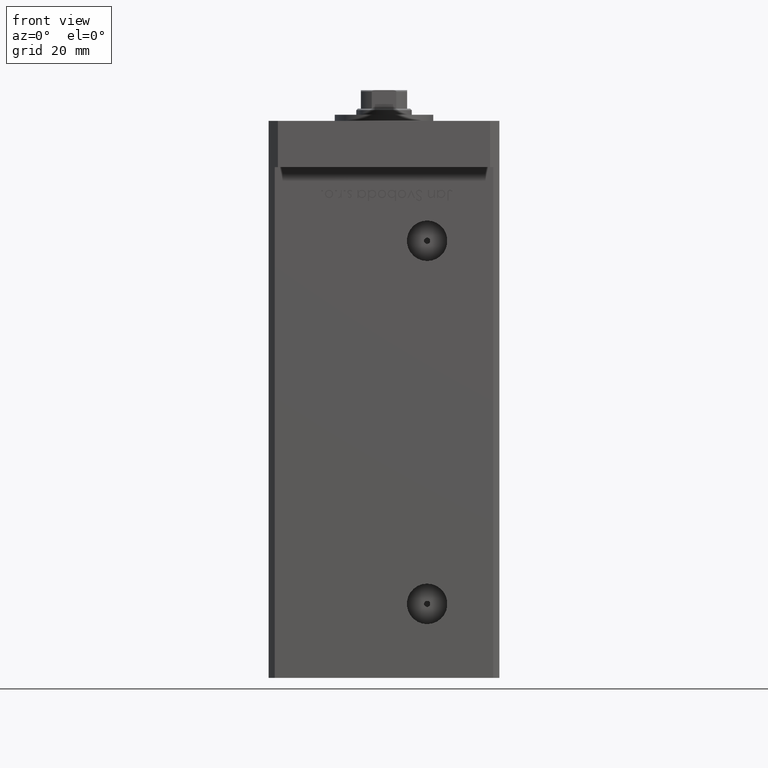
[diagram: clean part render]
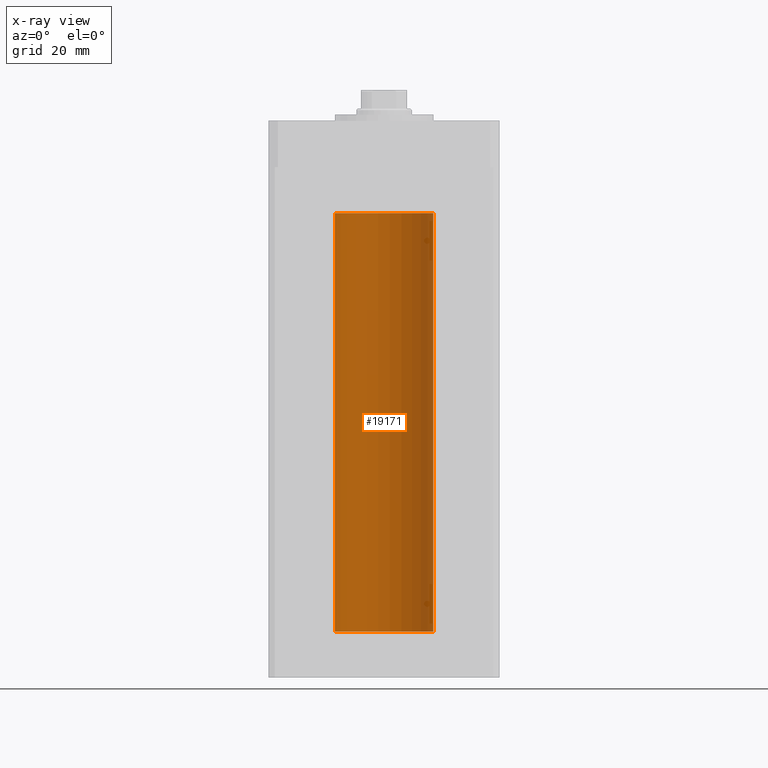
[diagram: x-ray — body ghosted, one internal face saturated and labeled with its STEP entity id]
A machine part, front view, then the same camera in x-ray: the body is ghosted and one INTERNAL B-rep face — a face not visible from any outside direction — is saturated and labeled: STEP entity #19171.
In plain terms, the highlighted cylindrical surface (partial cylindrical patch) has radius 16 mm, axis along (-0, -0, -1).
Its self-contained STEP definition (entity closure, byte-faithful):
#1785 = VERTEX_POINT ( 'NONE', #48155 ) ;
#2340 = ORIENTED_EDGE ( 'NONE', *, *, #39393, .F. ) ;
#3429 = CARTESIAN_POINT ( 'NONE',  ( 0.000000000000000000, 0.000000000000000000, 136.0000000000000000 ) ) ;
#4824 = FACE_OUTER_BOUND ( 'NONE', #34245, .T. ) ;
#5467 = VERTEX_POINT ( 'NONE', #13594 ) ;
#5769 = ORIENTED_EDGE ( 'NONE', *, *, #34283, .F. ) ;
#9346 = DIRECTION ( 'NONE',  ( -0.000000000000000000, -0.000000000000000000, -1.000000000000000000 ) ) ;
#9425 = VECTOR ( 'NONE', #14420, 1000.000000000000000 ) ;
#10277 = CIRCLE ( 'NONE', #52707, 16.00000000000000000 ) ;
#12845 = CARTESIAN_POINT ( 'NONE',  ( 16.00000000000000000, 1.959434878635765131E-15, 136.0000000000000000 ) ) ;
#13594 = CARTESIAN_POINT ( 'NONE',  ( 16.00000000000000000, 1.959434878635765131E-15, 0.000000000000000000 ) ) ;
#14420 = DIRECTION ( 'NONE',  ( -0.000000000000000000, -0.000000000000000000, -1.000000000000000000 ) ) ;
#14981 = ORIENTED_EDGE ( 'NONE', *, *, #37459, .T. ) ;
#18393 = DIRECTION ( 'NONE',  ( -0.000000000000000000, 0.000000000000000000, 1.000000000000000000 ) ) ;
#19171 = ADVANCED_FACE ( 'NONE', ( #4824 ), #24898, .F. ) ;
#19276 = VERTEX_POINT ( 'NONE', #51723 ) ;
#19695 = DIRECTION ( 'NONE',  ( 1.000000000000000000, 0.000000000000000000, 0.000000000000000000 ) ) ;
#19970 = DIRECTION ( 'NONE',  ( -0.000000000000000000, 0.000000000000000000, 1.000000000000000000 ) ) ;
#21367 = CARTESIAN_POINT ( 'NONE',  ( 0.000000000000000000, 0.000000000000000000, 136.0000000000000000 ) ) ;
#23408 = ORIENTED_EDGE ( 'NONE', *, *, #38317, .T. ) ;
#24898 = CYLINDRICAL_SURFACE ( 'NONE', #48897, 16.00000000000000000 ) ;
#27674 = CIRCLE ( 'NONE', #32009, 16.00000000000000000 ) ;
#32009 = AXIS2_PLACEMENT_3D ( 'NONE', #3429, #19970, #19695 ) ;
#34245 = EDGE_LOOP ( 'NONE', ( #2340, #14981, #23408, #5769 ) ) ;
#34283 = EDGE_CURVE ( 'NONE', #5467, #19276, #10277, .T. ) ;
#34511 = CARTESIAN_POINT ( 'NONE',  ( 16.00000000000000000, 1.959434878635765131E-15, 136.0000000000000000 ) ) ;
#37459 = EDGE_CURVE ( 'NONE', #52756, #1785, #27674, .T. ) ;
#38123 = VECTOR ( 'NONE', #9346, 1000.000000000000000 ) ;
#38317 = EDGE_CURVE ( 'NONE', #1785, #19276, #49516, .T. ) ;
#39393 = EDGE_CURVE ( 'NONE', #52756, #5467, #51581, .T. ) ;
#39815 = CARTESIAN_POINT ( 'NONE',  ( 0.000000000000000000, 0.000000000000000000, 0.000000000000000000 ) ) ;
#41461 = DIRECTION ( 'NONE',  ( -0.000000000000000000, -0.000000000000000000, -1.000000000000000000 ) ) ;
#46519 = CARTESIAN_POINT ( 'NONE',  ( -16.00000000000000000, 0.000000000000000000, 136.0000000000000000 ) ) ;
#48155 = CARTESIAN_POINT ( 'NONE',  ( -16.00000000000000000, 0.000000000000000000, 136.0000000000000000 ) ) ;
#48227 = DIRECTION ( 'NONE',  ( 1.000000000000000000, 0.000000000000000000, 0.000000000000000000 ) ) ;
#48897 = AXIS2_PLACEMENT_3D ( 'NONE', #21367, #41461, #49863 ) ;
#49516 = LINE ( 'NONE', #46519, #38123 ) ;
#49863 = DIRECTION ( 'NONE',  ( -1.000000000000000000, 0.000000000000000000, 0.000000000000000000 ) ) ;
#51581 = LINE ( 'NONE', #34511, #9425 ) ;
#51723 = CARTESIAN_POINT ( 'NONE',  ( -16.00000000000000000, 0.000000000000000000, 0.000000000000000000 ) ) ;
#52707 = AXIS2_PLACEMENT_3D ( 'NONE', #39815, #18393, #48227 ) ;
#52756 = VERTEX_POINT ( 'NONE', #12845 ) ;